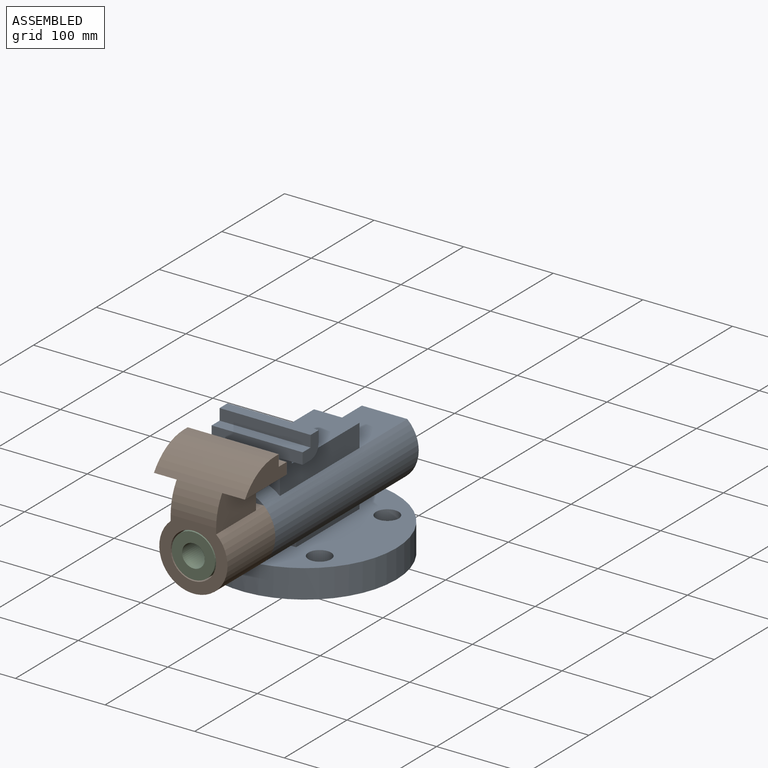
[diagram: assembled view]
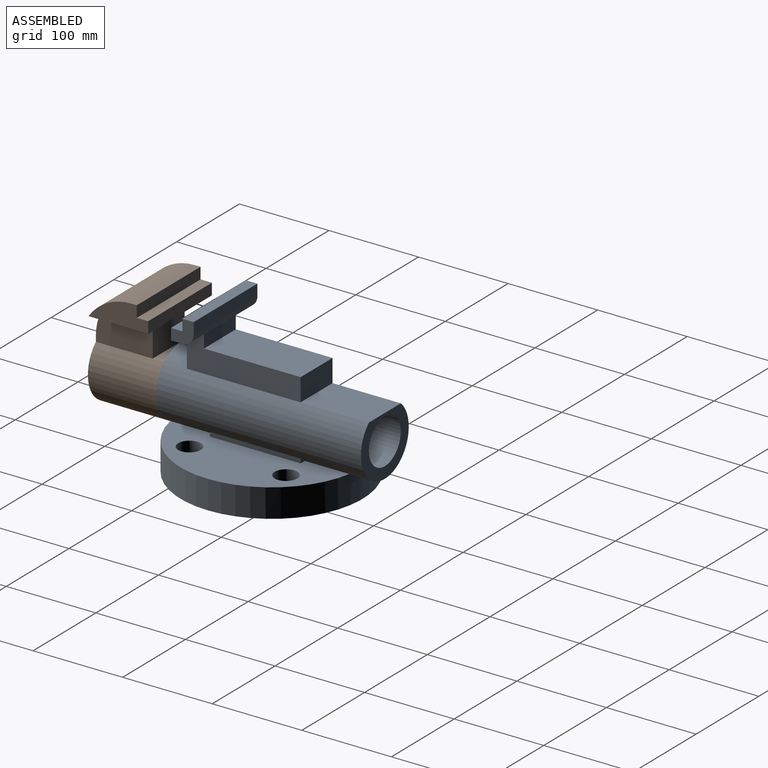
[diagram: assembled view, second angle]
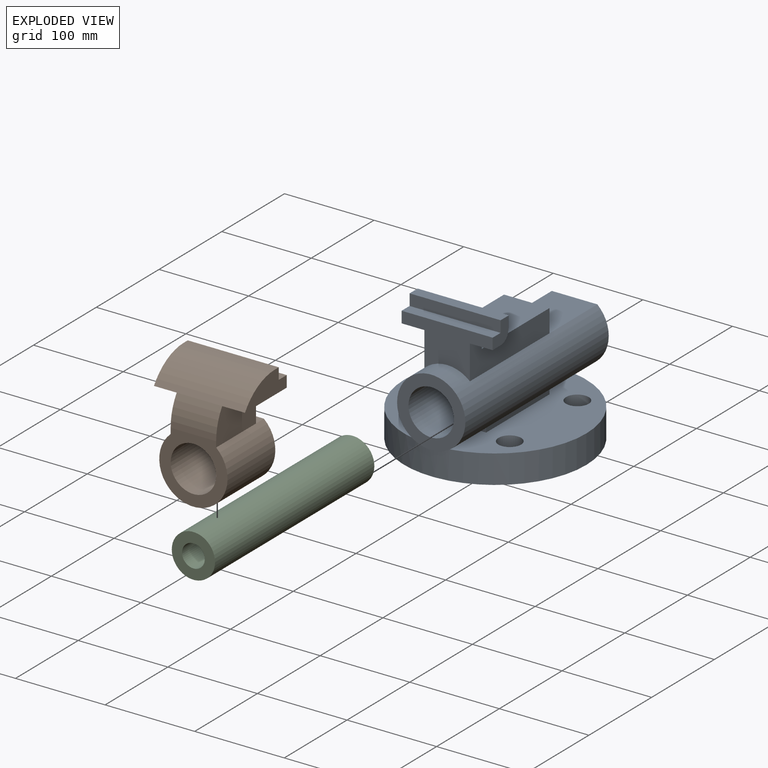
[diagram: exploded view]
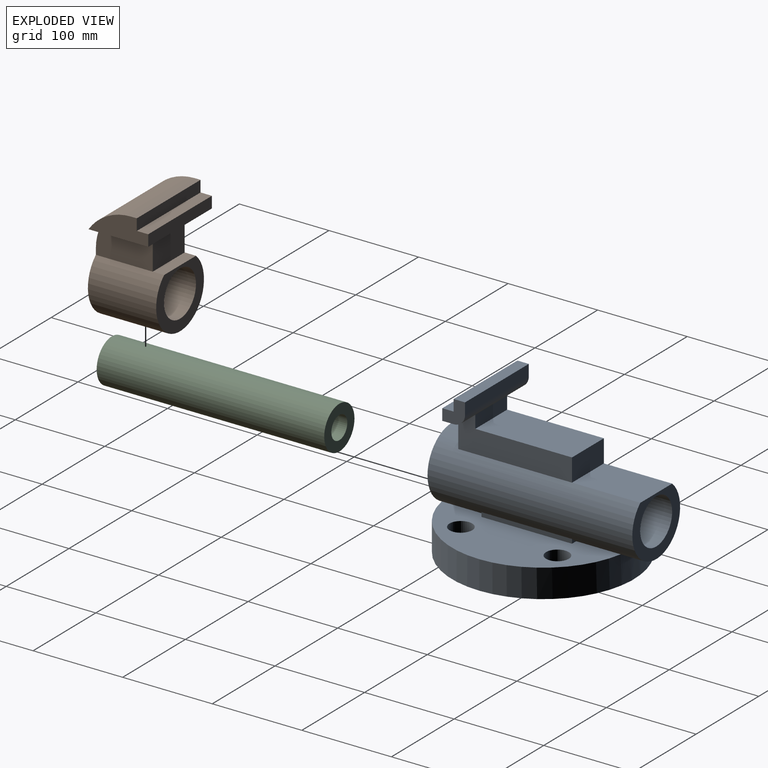
[diagram: exploded view, second angle]
ASSEMBLY  parts=3 mates=2
PART A: 34 faces, bbox 203.2x228.6x156.8 mm
  f0: cylinder r=38.1mm len=228.6mm, axis (0,-1,0), area 33860.8mm2, adj f1,f2,f3,f4,f5,f6,f8,f9
  f1: plane 101.04x4.8mm, normal (-1,0,0), area 484.9mm2, adj f0,f2,f5,f26
  f2: plane 6.7x4.8mm, normal (0,-1,0), area 14.9mm2, adj f0,f1,f26
  f3: plane 6.7x4.8mm, normal (0,-1,0), area 14.9mm2, adj f0,f4,f29
  f4: plane 101.04x4.8mm, normal (1,0,0), area 484.9mm2, adj f0,f3,f6,f29
  f5: plane 6.7x4.8mm, normal (0,1,0), area 14.9mm2, adj f0,f1,f26
  f6: plane 6.7x4.8mm, normal (0,1,0), area 14.9mm2, adj f0,f4,f29
  f7: plane 25.4x12.7mm, normal (0,0,-1), area 322.6mm2, adj f9,f11,f15,f23
  f8: plane 127x39.8mm, normal (1,0,0), area 3471.2mm2, adj f0,f13,f15,f19,f21,f22,f23
  f9: plane 127x39.8mm, normal (-1,0,0), area 3471.2mm2, adj f0,f7,f15,f19,f21,f22,f23
  f10: plane 101.6x12.7mm, normal (0,0,1), area 1290.3mm2, adj f11,f12,f16,f18
  f11: plane 25.4x25.4mm, normal (-1,0,0), area 449.3mm2, adj f7,f10,f15,f16,f17,f18,f23
  f12: plane 25.4x25.4mm, normal (1,0,0), area 449.3mm2, adj f10,f13,f15,f16,f17,f18,f23
  f13: plane 25.4x12.7mm, normal (0,0,-1), area 322.6mm2, adj f8,f12,f15,f23
  f14: plane 76.2x66.5mm, normal (0,1,0), area 2195.6mm2, adj f0,f20,f24
  f15: plane 101.6x50.8mm, normal (0,-1,0), area 2887.8mm2, adj f0,f7,f8,f9,f11,f12,f13,f17
  f16: plane 101.6x12.7mm, normal (0,1,0), area 1290.3mm2, adj f10,f11,f12,f23
  f17: plane 101.6x12.7mm, normal (0,0,1), area 1290.3mm2, adj f11,f12,f15,f18
  f18: plane 101.6x12.7mm, normal (0,-1,0), area 1290.3mm2, adj f10,f11,f12,f17
  f19: plane 50.8x25.4mm, normal (0,1,0), area 1290.3mm2, adj f8,f9,f20,f21
  f20: plane 76.2x50.8mm, normal (0,0,1), area 3871mm2, adj f0,f14,f19
  f21: plane 107.95x50.8mm, normal (0,0,1), area 5483.9mm2, adj f8,f9,f19,f22
  f22: plane 50.8x14.4mm, normal (0,1,0), area 731.6mm2, adj f8,f9,f21,f23
  f23: cylinder r=12.7mm len=101.6mm, axis (-1,0,0), area 1689mm2, adj f7,f8,f9,f11,f12,f13,f16,f22
  f24: cylinder r=25.4mm len=228.6mm, axis (0,1,0), area 36482.9mm2, adj f14,f25
  f25: plane 76.2x76.2mm, normal (0,-1,0), area 2533.5mm2, adj f0,f24
  f26: plane 199.73x82.9mm, normal (0,0,1), area 10746.3mm2, adj f0,f1,f2,f5,f27,f32,f33
  f27: cylinder r=101.6mm len=203.2mm, axis (0,0,1), area 20019.6mm2, adj f0,f26,f28,f29
  f28: plane 203.2x203.2mm, normal (0,0,-1), area 30402.4mm2, adj f27,f30,f31,f32,f33
  f29: plane 199.73x82.9mm, normal (0,0,1), area 10746.3mm2, adj f0,f3,f4,f6,f27,f30,f31
  f30: cylinder r=12.7mm len=31.75mm, axis (0,0,-1), area 2533.5mm2, adj f28,f29
  f31: cylinder r=12.7mm len=31.75mm, axis (0,0,-1), area 2533.5mm2, adj f28,f29
  f32: cylinder r=12.7mm len=31.75mm, axis (0,0,-1), area 2533.5mm2, adj f26,f28
  f33: cylinder r=12.7mm len=31.75mm, axis (0,0,-1), area 2533.5mm2, adj f26,f28
PART B: 16 faces, bbox 101.6x76.2x130 mm
  f0: plane 76.2x66.5mm, normal (0,1,0), area 2195.6mm2, adj f5,f9,f15
  f1: plane 63.5x38.1mm, normal (1,0,0), area 2321.1mm2, adj f5,f8,f10,f13,f14
  f2: plane 66.57x25.4mm, normal (-1,0,0), area 1171.5mm2, adj f3,f7,f8,f11,f12,f13
  f3: plane 101.6x12.7mm, normal (0,1,0), area 1290.3mm2, adj f2,f6,f8,f11
  f4: plane 63.5x38.1mm, normal (-1,0,0), area 2321.1mm2, adj f5,f8,f10,f13,f14
  f5: cylinder r=38.1mm len=76.2mm, axis (0,1,0), area 14004.3mm2, adj f0,f1,f4,f10,f15
  f6: plane 66.57x25.4mm, normal (1,0,0), area 1171.5mm2, adj f3,f7,f8,f11,f12,f13
  f7: plane 101.6x6.35mm, normal (0,0,1), area 645.2mm2, adj f2,f6,f12,f13
  f8: plane 101.6x66.57mm, normal (0,0,-1), area 4026.9mm2, adj f1,f2,f3,f4,f6,f13,f14
  f9: cylinder r=25.4mm len=76.2mm, axis (0,1,0), area 12161mm2, adj f0,f10
  f10: plane 76.2x72.85mm, normal (0,-1,0), area 2518.1mm2, adj f1,f4,f5,f9,f13
  f11: plane 101.6x12.7mm, normal (0,0,1), area 1290.3mm2, adj f2,f3,f6,f12
  f12: plane 101.6x12.7mm, normal (0,1,0), area 1290.3mm2, adj f2,f6,f7,f11
  f13: cylinder r=57.15mm len=101.6mm, axis (1,0,0), area 7410.6mm2, adj f1,f2,f4,f6,f7,f8,f10
  f14: plane 50.8x38.1mm, normal (0,1,0), area 1935.4mm2, adj f1,f4,f8,f15
  f15: plane 50.8x12.7mm, normal (0,0,1), area 645.2mm2, adj f0,f5,f14
PART C: 4 faces, bbox 48.3x254x48.3 mm
  f0: cylinder r=24.13mm len=254mm, axis (0,1,0), area 38509.8mm2, adj f1,f2
  f1: plane 48.26x48.26mm, normal (0,-1,0), area 1322.5mm2, adj f0,f3
  f2: plane 48.26x48.26mm, normal (0,1,0), area 1322.5mm2, adj f0,f3
  f3: cylinder r=12.7mm len=254mm, axis (0,-1,0), area 20268.3mm2, adj f1,f2
PLACE A t=(168.51,-12.63,-45)mm
PLACE B t=(168.51,-38.03,34.19)mm
PLACE C t=(168.51,139.77,-45)mm
MATE fastened B.f3 <-> A.f25  axis (0,1,0) through (168.51,-38.03,34.19)mm
MATE fastened B.f5 <-> C.f0  axis (0,-1,0) through (168.51,-114.23,-45)mm
